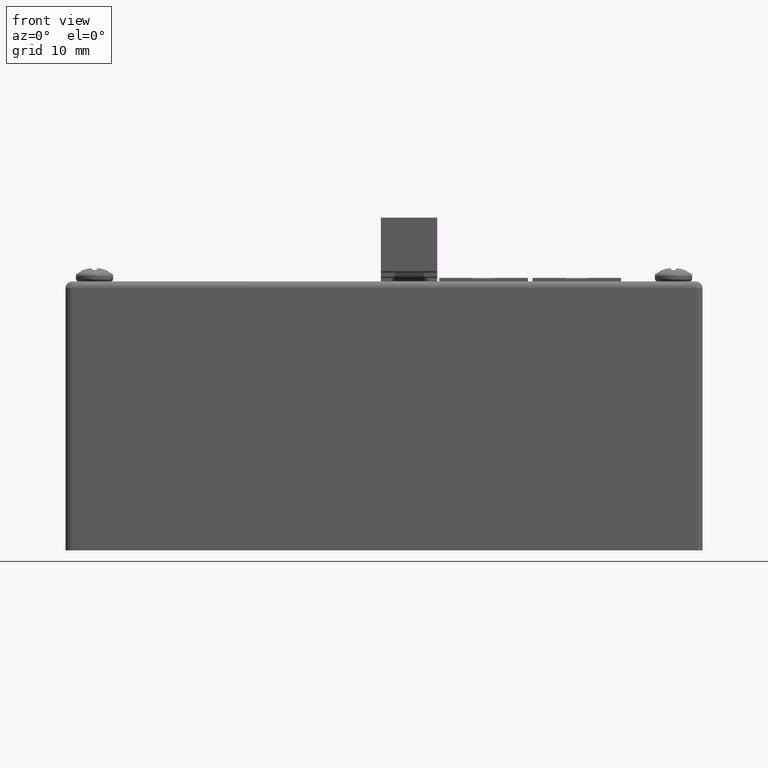
[diagram: clean part render]
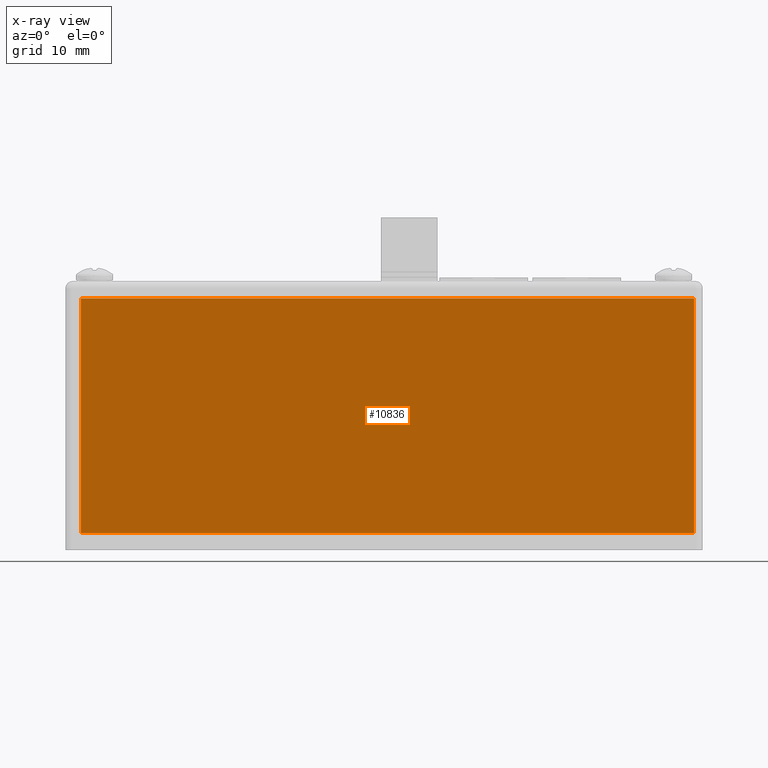
[diagram: x-ray — body ghosted, one internal face saturated and labeled with its STEP entity id]
A machine part, front view, then the same camera in x-ray: the body is ghosted and one INTERNAL B-rep face — a face not visible from any outside direction — is saturated and labeled: STEP entity #10836.
In plain terms, the highlighted planar face has unit normal (0, -1, 0).
Its self-contained STEP definition (entity closure, byte-faithful):
#3 = EDGE_CURVE ( 'NONE', #17186, #3218, #7752, .T. ) ;
#3030 = ORIENTED_EDGE ( 'NONE', *, *, #7274, .F. ) ;
#3180 = DIRECTION ( 'NONE',  ( 0.000000000000000000, 0.000000000000000000, -1.000000000000000000 ) ) ;
#3218 = VERTEX_POINT ( 'NONE', #16090 ) ;
#3619 = ORIENTED_EDGE ( 'NONE', *, *, #23591, .F. ) ;
#3755 = DIRECTION ( 'NONE',  ( 0.000000000000000000, 0.000000000000000000, -1.000000000000000000 ) ) ;
#4297 = VERTEX_POINT ( 'NONE', #17646 ) ;
#5219 = ORIENTED_EDGE ( 'NONE', *, *, #3, .F. ) ;
#7274 = EDGE_CURVE ( 'NONE', #3218, #4297, #14552, .T. ) ;
#7638 = CARTESIAN_POINT ( 'NONE',  ( 0.000000000000000000, 0.000000000000000000, -35.05199999999999960 ) ) ;
#7752 = LINE ( 'NONE', #14014, #9409 ) ;
#8337 = EDGE_LOOP ( 'NONE', ( #5219, #22905, #3619, #3030 ) ) ;
#8959 = VECTOR ( 'NONE', #18169, 1000.000000000000000 ) ;
#9409 = VECTOR ( 'NONE', #10116, 1000.000000000000000 ) ;
#10116 = DIRECTION ( 'NONE',  ( 0.000000000000000000, 0.000000000000000000, 1.000000000000000000 ) ) ;
#10396 = CARTESIAN_POINT ( 'NONE',  ( 0.000000000000000000, 0.000000000000000000, 0.000000000000000000 ) ) ;
#10649 = EDGE_CURVE ( 'NONE', #18563, #17186, #13745, .T. ) ;
#10836 = ADVANCED_FACE ( 'NONE', ( #13548 ), #13423, .T. ) ;
#13212 = LINE ( 'NONE', #15172, #20490 ) ;
#13423 = PLANE ( 'NONE',  #23504 ) ;
#13548 = FACE_OUTER_BOUND ( 'NONE', #8337, .T. ) ;
#13745 = LINE ( 'NONE', #18306, #8959 ) ;
#14014 = CARTESIAN_POINT ( 'NONE',  ( 0.000000000000000000, 0.000000000000000000, 0.000000000000000000 ) ) ;
#14552 = LINE ( 'NONE', #10396, #16291 ) ;
#15172 = CARTESIAN_POINT ( 'NONE',  ( 91.43999999999999773, 0.000000000000000000, 0.000000000000000000 ) ) ;
#16090 = CARTESIAN_POINT ( 'NONE',  ( 0.000000000000000000, 0.000000000000000000, 0.000000000000000000 ) ) ;
#16291 = VECTOR ( 'NONE', #22499, 1000.000000000000000 ) ;
#17186 = VERTEX_POINT ( 'NONE', #7638 ) ;
#17646 = CARTESIAN_POINT ( 'NONE',  ( 91.43999999999999773, 0.000000000000000000, 0.000000000000000000 ) ) ;
#18169 = DIRECTION ( 'NONE',  ( -1.000000000000000000, 0.000000000000000000, 0.000000000000000000 ) ) ;
#18306 = CARTESIAN_POINT ( 'NONE',  ( 0.000000000000000000, 0.000000000000000000, -35.05199999999999960 ) ) ;
#18563 = VERTEX_POINT ( 'NONE', #24725 ) ;
#19802 = CARTESIAN_POINT ( 'NONE',  ( 0.000000000000000000, 0.000000000000000000, 0.000000000000000000 ) ) ;
#20490 = VECTOR ( 'NONE', #3180, 1000.000000000000000 ) ;
#22499 = DIRECTION ( 'NONE',  ( 1.000000000000000000, 0.000000000000000000, 0.000000000000000000 ) ) ;
#22905 = ORIENTED_EDGE ( 'NONE', *, *, #10649, .F. ) ;
#23455 = DIRECTION ( 'NONE',  ( 0.000000000000000000, -1.000000000000000000, 0.000000000000000000 ) ) ;
#23504 = AXIS2_PLACEMENT_3D ( 'NONE', #19802, #23455, #3755 ) ;
#23591 = EDGE_CURVE ( 'NONE', #4297, #18563, #13212, .T. ) ;
#24725 = CARTESIAN_POINT ( 'NONE',  ( 91.43999999999999773, 0.000000000000000000, -35.05199999999999960 ) ) ;